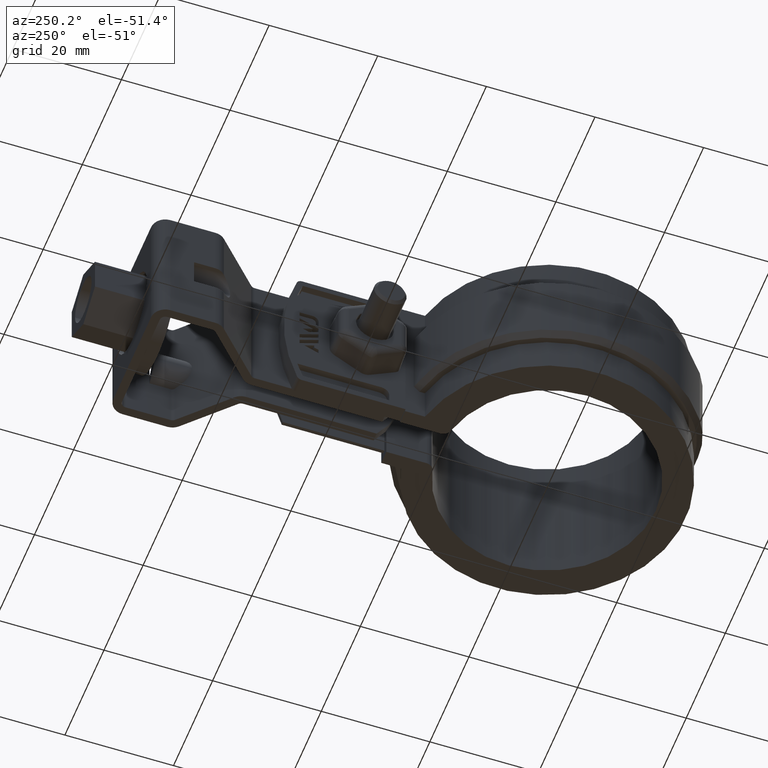
[diagram: clean part render]
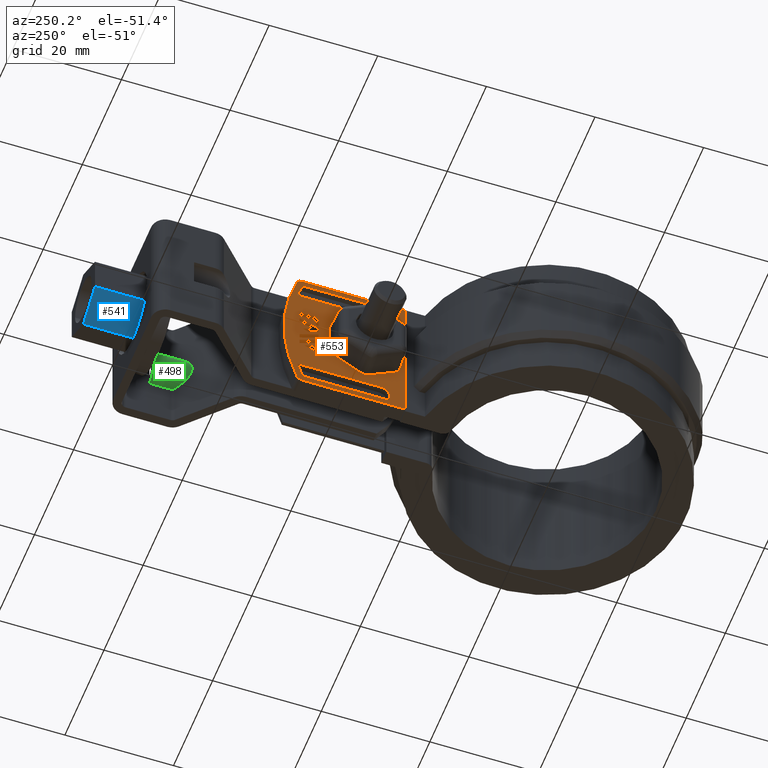
[diagram: same view with three faces highlighted in distinct colors, each labeled with its STEP entity id]
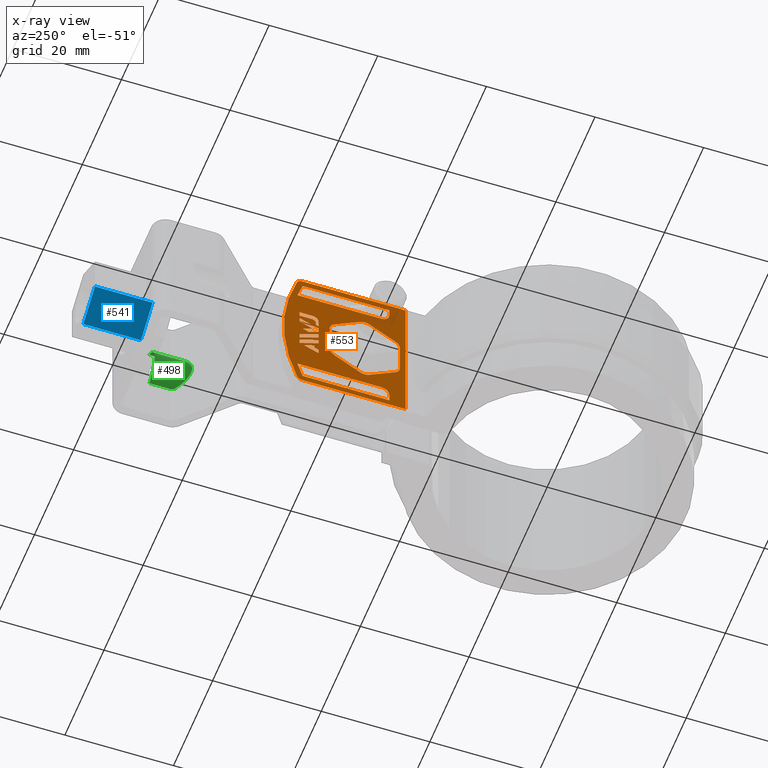
[diagram: x-ray of the same camera — body ghosted, the three highlighted faces saturated]
A machine part, auxiliary view with three faces highlighted in distinct colors.
The next image is the same camera in x-ray (body ghosted, the three faces saturated) — at least one of them is partly hidden behind the body in this view.
Their STEP definitions:

[orange] entity #553 — the highlighted planar face has unit normal (-1, 0, -0).
#553 = ADVANCED_FACE( '', ( #1112, #1113, #1114, #1115, #1116, #1117, #1118, #1119, #1120 ), #1121, .T. );
#1112 = FACE_BOUND( '', #2221, .T. );
#1113 = FACE_BOUND( '', #2222, .T. );
#1114 = FACE_BOUND( '', #2223, .T. );
#1115 = FACE_OUTER_BOUND( '', #2224, .T. );
#1116 = FACE_BOUND( '', #2225, .T. );
#1117 = FACE_BOUND( '', #2226, .T. );
#1118 = FACE_BOUND( '', #2227, .T. );
#1119 = FACE_BOUND( '', #2228, .T. );
#1120 = FACE_BOUND( '', #2229, .T. );
#1121 = PLANE( '', #2230 );
#2221 = EDGE_LOOP( '', ( #5444, #5445, #5446, #5447, #5448 ) );
#2222 = EDGE_LOOP( '', ( #5449, #5450, #5451, #5452 ) );
#2223 = EDGE_LOOP( '', ( #5453, #5454, #5455, #5456, #5457, #5458, #5459, #5460, #5461, #5462, #5463, #5464 ) );
#2224 = EDGE_LOOP( '', ( #5465, #5466, #5467, #5468, #5469, #5470 ) );
#2225 = EDGE_LOOP( '', ( #5471, #5472, #5473, #5474, #5475 ) );
#2226 = EDGE_LOOP( '', ( #5476, #5477, #5478, #5479, #5480 ) );
#2227 = EDGE_LOOP( '', ( #5481, #5482, #5483, #5484, #5485, #5486, #5487, #5488, #5489, #5490, #5491, #5492, #5493, #5494, #5495, #5496, #5497, #5498, #5499, #5500, #5501, #5502, #5503, #5504, #5505, #5506, #5507, #5508, #5509, #5510, #5511, #5512, #5513, #5514, #5515, #5516, #5517, #5518, #5519, #5520 ) );
#2228 = EDGE_LOOP( '', ( #5521, #5522, #5523, #5524, #5525, #5526, #5527 ) );
#2229 = EDGE_LOOP( '', ( #5528, #5529, #5530, #5531 ) );
#2230 = AXIS2_PLACEMENT_3D( '', #5532, #5533, #5534 );
#5444 = ORIENTED_EDGE( '', *, *, #7228, .T. );
#5445 = ORIENTED_EDGE( '', *, *, #7229, .T. );
#5446 = ORIENTED_EDGE( '', *, *, #7230, .T. );
#5447 = ORIENTED_EDGE( '', *, *, #7231, .T. );
#5448 = ORIENTED_EDGE( '', *, *, #7232, .T. );
#5449 = ORIENTED_EDGE( '', *, *, #7233, .T. );
#5450 = ORIENTED_EDGE( '', *, *, #7234, .T. );
#5451 = ORIENTED_EDGE( '', *, *, #7235, .T. );
#5452 = ORIENTED_EDGE( '', *, *, #7236, .T. );
#5453 = ORIENTED_EDGE( '', *, *, #7237, .F. );
#5454 = ORIENTED_EDGE( '', *, *, #7238, .F. );
#5455 = ORIENTED_EDGE( '', *, *, #7239, .F. );
#5456 = ORIENTED_EDGE( '', *, *, #7240, .F. );
#5457 = ORIENTED_EDGE( '', *, *, #7241, .F. );
#5458 = ORIENTED_EDGE( '', *, *, #7242, .F. );
#5459 = ORIENTED_EDGE( '', *, *, #7243, .F. );
#5460 = ORIENTED_EDGE( '', *, *, #7244, .F. );
#5461 = ORIENTED_EDGE( '', *, *, #7245, .F. );
#5462 = ORIENTED_EDGE( '', *, *, #7246, .F. );
#5463 = ORIENTED_EDGE( '', *, *, #7247, .F. );
#5464 = ORIENTED_EDGE( '', *, *, #7248, .F. );
#5465 = ORIENTED_EDGE( '', *, *, #7249, .T. );
#5466 = ORIENTED_EDGE( '', *, *, #7250, .T. );
#5467 = ORIENTED_EDGE( '', *, *, #7251, .T. );
#5468 = ORIENTED_EDGE( '', *, *, #7252, .T. );
#5469 = ORIENTED_EDGE( '', *, *, #7253, .T. );
#5470 = ORIENTED_EDGE( '', *, *, #7254, .T. );
#5471 = ORIENTED_EDGE( '', *, *, #7255, .F. );
#5472 = ORIENTED_EDGE( '', *, *, #7256, .T. );
#5473 = ORIENTED_EDGE( '', *, *, #7257, .T. );
#5474 = ORIENTED_EDGE( '', *, *, #7258, .T. );
#5475 = ORIENTED_EDGE( '', *, *, #7259, .F. );
#5476 = ORIENTED_EDGE( '', *, *, #7260, .F. );
#5477 = ORIENTED_EDGE( '', *, *, #7261, .F. );
#5478 = ORIENTED_EDGE( '', *, *, #7262, .T. );
#5479 = ORIENTED_EDGE( '', *, *, #7263, .T. );
#5480 = ORIENTED_EDGE( '', *, *, #7264, .T. );
#5481 = ORIENTED_EDGE( '', *, *, #7265, .T. );
#5482 = ORIENTED_EDGE( '', *, *, #7266, .T. );
#5483 = ORIENTED_EDGE( '', *, *, #7267, .T. );
#5484 = ORIENTED_EDGE( '', *, *, #7268, .T. );
#5485 = ORIENTED_EDGE( '', *, *, #7269, .T. );
#5486 = ORIENTED_EDGE( '', *, *, #7270, .T. );
#5487 = ORIENTED_EDGE( '', *, *, #7271, .T. );
#5488 = ORIENTED_EDGE( '', *, *, #7272, .T. );
#5489 = ORIENTED_EDGE( '', *, *, #7273, .T. );
#5490 = ORIENTED_EDGE( '', *, *, #7274, .T. );
#5491 = ORIENTED_EDGE( '', *, *, #7275, .T. );
#5492 = ORIENTED_EDGE( '', *, *, #7276, .T. );
#5493 = ORIENTED_EDGE( '', *, *, #7277, .T. );
#5494 = ORIENTED_EDGE( '', *, *, #7278, .T. );
#5495 = ORIENTED_EDGE( '', *, *, #7279, .T. );
#5496 = ORIENTED_EDGE( '', *, *, #7280, .T. );
#5497 = ORIENTED_EDGE( '', *, *, #7281, .T. );
#5498 = ORIENTED_EDGE( '', *, *, #7282, .T. );
#5499 = ORIENTED_EDGE( '', *, *, #7283, .T. );
#5500 = ORIENTED_EDGE( '', *, *, #7284, .T. );
#5501 = ORIENTED_EDGE( '', *, *, #7285, .T. );
#5502 = ORIENTED_EDGE( '', *, *, #7286, .T. );
#5503 = ORIENTED_EDGE( '', *, *, #7287, .T. );
#5504 = ORIENTED_EDGE( '', *, *, #7288, .T. );
#5505 = ORIENTED_EDGE( '', *, *, #7289, .T. );
#5506 = ORIENTED_EDGE( '', *, *, #7290, .T. );
#5507 = ORIENTED_EDGE( '', *, *, #7291, .T. );
#5508 = ORIENTED_EDGE( '', *, *, #7292, .T. );
#5509 = ORIENTED_EDGE( '', *, *, #7293, .T. );
#5510 = ORIENTED_EDGE( '', *, *, #7294, .T. );
#5511 = ORIENTED_EDGE( '', *, *, #7295, .T. );
#5512 = ORIENTED_EDGE( '', *, *, #7296, .T. );
#5513 = ORIENTED_EDGE( '', *, *, #7297, .T. );
#5514 = ORIENTED_EDGE( '', *, *, #7298, .T. );
#5515 = ORIENTED_EDGE( '', *, *, #7299, .T. );
#5516 = ORIENTED_EDGE( '', *, *, #7300, .T. );
#5517 = ORIENTED_EDGE( '', *, *, #7301, .T. );
#5518 = ORIENTED_EDGE( '', *, *, #7302, .T. );
#5519 = ORIENTED_EDGE( '', *, *, #7303, .T. );
#5520 = ORIENTED_EDGE( '', *, *, #7304, .T. );
#5521 = ORIENTED_EDGE( '', *, *, #7305, .T. );
#5522 = ORIENTED_EDGE( '', *, *, #7306, .T. );
#5523 = ORIENTED_EDGE( '', *, *, #7307, .T. );
#5524 = ORIENTED_EDGE( '', *, *, #7308, .T. );
#5525 = ORIENTED_EDGE( '', *, *, #7309, .T. );
#5526 = ORIENTED_EDGE( '', *, *, #7310, .T. );
#5527 = ORIENTED_EDGE( '', *, *, #7311, .T. );
#5528 = ORIENTED_EDGE( '', *, *, #7312, .T. );
#5529 = ORIENTED_EDGE( '', *, *, #7313, .T. );
#5530 = ORIENTED_EDGE( '', *, *, #7224, .T. );
#5531 = ORIENTED_EDGE( '', *, *, #7227, .T. );
#5532 = CARTESIAN_POINT( '', ( -6.30000000000000, 14.3515100161062, -12.4999999999999 ) );
#5533 = DIRECTION( '', ( -1.00000000000000, 6.90531165066416E-016, -3.52863551097418E-016 ) );
#5534 = DIRECTION( '', ( 6.90531165066416E-016, 1.00000000000000, 1.97370347598284E-018 ) );
#7224 = EDGE_CURVE( '', #8619, #8617, #8620, .T. );
#7227 = EDGE_CURVE( '', #8617, #8622, #8624, .T. );
#7228 = EDGE_CURVE( '', #8625, #8626, #8627, .T. );
#7229 = EDGE_CURVE( '', #8626, #8628, #8629, .T. );
#7230 = EDGE_CURVE( '', #8628, #8630, #8631, .T. );
#7231 = EDGE_CURVE( '', #8630, #8632, #8633, .T. );
#7232 = EDGE_CURVE( '', #8632, #8625, #8634, .T. );
#7233 = EDGE_CURVE( '', #8635, #8636, #8637, .T. );
#7234 = EDGE_CURVE( '', #8636, #8638, #8639, .T. );
#7235 = EDGE_CURVE( '', #8638, #8640, #8641, .T. );
#7236 = EDGE_CURVE( '', #8640, #8635, #8642, .T. );
#7237 = EDGE_CURVE( '', #8643, #8644, #8645, .F. );
#7238 = EDGE_CURVE( '', #8646, #8643, #8647, .T. );
#7239 = EDGE_CURVE( '', #8648, #8646, #8649, .F. );
#7240 = EDGE_CURVE( '', #8650, #8648, #8651, .T. );
#7241 = EDGE_CURVE( '', #8652, #8650, #8653, .F. );
#7242 = EDGE_CURVE( '', #8654, #8652, #8655, .T. );
#7243 = EDGE_CURVE( '', #8656, #8654, #8657, .F. );
#7244 = EDGE_CURVE( '', #8658, #8656, #8659, .T. );
#7245 = EDGE_CURVE( '', #8660, #8658, #8661, .F. );
#7246 = EDGE_CURVE( '', #8662, #8660, #8663, .T. );
#7247 = EDGE_CURVE( '', #8664, #8662, #8665, .F. );
#7248 = EDGE_CURVE( '', #8644, #8664, #8666, .T. );
#7249 = EDGE_CURVE( '', #8667, #8668, #8669, .T. );
#7250 = EDGE_CURVE( '', #8668, #8670, #8671, .T. );
#7251 = EDGE_CURVE( '', #8670, #8672, #8673, .T. );
#7252 = EDGE_CURVE( '', #8672, #8674, #8675, .T. );
#7253 = EDGE_CURVE( '', #8674, #8676, #8677, .T. );
#7254 = EDGE_CURVE( '', #8676, #8667, #8678, .T. );
#7255 = EDGE_CURVE( '', #8679, #8680, #8681, .T. );
#7256 = EDGE_CURVE( '', #8679, #8682, #8683, .T. );
#7257 = EDGE_CURVE( '', #8682, #8684, #8685, .T. );
#7258 = EDGE_CURVE( '', #8684, #8686, #8687, .T. );
#7259 = EDGE_CURVE( '', #8680, #8686, #8688, .T. );
#7260 = EDGE_CURVE( '', #8689, #8690, #8691, .T. );
#7261 = EDGE_CURVE( '', #8692, #8689, #8693, .T. );
#7262 = EDGE_CURVE( '', #8692, #8694, #8695, .T. );
#7263 = EDGE_CURVE( '', #8694, #8696, #8697, .T. );
#7264 = EDGE_CURVE( '', #8696, #8690, #8698, .T. );
#7265 = EDGE_CURVE( '', #8699, #8700, #8701, .T. );
#7266 = EDGE_CURVE( '', #8700, #8702, #8703, .T. );
#7267 = EDGE_CURVE( '', #8702, #8704, #8705, .T. );
#7268 = EDGE_CURVE( '', #8704, #8706, #8707, .T. );
#7269 = EDGE_CURVE( '', #8706, #8708, #8709, .T. );
#7270 = EDGE_CURVE( '', #8708, #8710, #8711, .T. );
#7271 = EDGE_CURVE( '', #8710, #8712, #8713, .T. );
#7272 = EDGE_CURVE( '', #8712, #8714, #8715, .T. );
#7273 = EDGE_CURVE( '', #8714, #8716, #8717, .T. );
#7274 = EDGE_CURVE( '', #8716, #8718, #8719, .T. );
#7275 = EDGE_CURVE( '', #8718, #8720, #8721, .T. );
#7276 = EDGE_CURVE( '', #8720, #8722, #8723, .T. );
#7277 = EDGE_CURVE( '', #8722, #8724, #8725, .T. );
#7278 = EDGE_CURVE( '', #8724, #8726, #8727, .T. );
#7279 = EDGE_CURVE( '', #8726, #8728, #8729, .T. );
#7280 = EDGE_CURVE( '', #8728, #8730, #8731, .T. );
#7281 = EDGE_CURVE( '', #8730, #8732, #8733, .T. );
#7282 = EDGE_CURVE( '', #8732, #8734, #8735, .T. );
#7283 = EDGE_CURVE( '', #8734, #8736, #8737, .T. );
#7284 = EDGE_CURVE( '', #8736, #8738, #8739, .T. );
#7285 = EDGE_CURVE( '', #8738, #8740, #8741, .T. );
#7286 = EDGE_CURVE( '', #8740, #8742, #8743, .T. );
#7287 = EDGE_CURVE( '', #8742, #8744, #8745, .T. );
#7288 = EDGE_CURVE( '', #8744, #8746, #8747, .T. );
#7289 = EDGE_CURVE( '', #8746, #8748, #8749, .T. );
#7290 = EDGE_CURVE( '', #8748, #8750, #8751, .T. );
#7291 = EDGE_CURVE( '', #8750, #8752, #8753, .T. );
#7292 = EDGE_CURVE( '', #8752, #8754, #8755, .T. );
#7293 = EDGE_CURVE( '', #8754, #8756, #8757, .T. );
#7294 = EDGE_CURVE( '', #8756, #8758, #8759, .T. );
#7295 = EDGE_CURVE( '', #8758, #8760, #8761, .T. );
#7296 = EDGE_CURVE( '', #8760, #8762, #8763, .T. );
#7297 = EDGE_CURVE( '', #8762, #8764, #8765, .T. );
#7298 = EDGE_CURVE( '', #8764, #8766, #8767, .T. );
#7299 = EDGE_CURVE( '', #8766, #8768, #8769, .T. );
#7300 = EDGE_CURVE( '', #8768, #8770, #8771, .T. );
#7301 = EDGE_CURVE( '', #8770, #8772, #8773, .T. );
#7302 = EDGE_CURVE( '', #8772, #8774, #8775, .T. );
#7303 = EDGE_CURVE( '', #8774, #8776, #8777, .T. );
#7304 = EDGE_CURVE( '', #8776, #8699, #8778, .F. );
#7305 = EDGE_CURVE( '', #8779, #8780, #8781, .T. );
#7306 = EDGE_CURVE( '', #8780, #8782, #8783, .T. );
#7307 = EDGE_CURVE( '', #8782, #8784, #8785, .T. );
#7308 = EDGE_CURVE( '', #8784, #8786, #8787, .T. );
#7309 = EDGE_CURVE( '', #8786, #8788, #8789, .T. );
#7310 = EDGE_CURVE( '', #8788, #8790, #8791, .T. );
#7311 = EDGE_CURVE( '', #8790, #8779, #8792, .T. );
#7312 = EDGE_CURVE( '', #8622, #8793, #8794, .T. );
#7313 = EDGE_CURVE( '', #8793, #8619, #8795, .T. );
#8617 = VERTEX_POINT( '', #12225 );
#8619 = VERTEX_POINT( '', #12228 );
#8620 = LINE( '', #12229, #12230 );
#8622 = VERTEX_POINT( '', #12233 );
#8624 = LINE( '', #12236, #12237 );
#8625 = VERTEX_POINT( '', #12238 );
#8626 = VERTEX_POINT( '', #12239 );
#8627 = LINE( '', #12240, #12241 );
#8628 = VERTEX_POINT( '', #12242 );
#8629 = LINE( '', #12243, #12244 );
#8630 = VERTEX_POINT( '', #12245 );
#8631 = LINE( '', #12246, #12247 );
#8632 = VERTEX_POINT( '', #12248 );
#8633 = LINE( '', #12249, #12250 );
#8634 = LINE( '', #12251, #12252 );
#8635 = VERTEX_POINT( '', #12253 );
#8636 = VERTEX_POINT( '', #12254 );
#8637 = LINE( '', #12255, #12256 );
#8638 = VERTEX_POINT( '', #12257 );
#8639 = LINE( '', #12258, #12259 );
#8640 = VERTEX_POINT( '', #12260 );
#8641 = LINE( '', #12261, #12262 );
#8642 = LINE( '', #12263, #12264 );
#8643 = VERTEX_POINT( '', #12265 );
#8644 = VERTEX_POINT( '', #12266 );
#8645 = LINE( '', #12267, #12268 );
#8646 = VERTEX_POINT( '', #12269 );
#8647 = CIRCLE( '', #12270, 1.77252045227160 );
#8648 = VERTEX_POINT( '', #12271 );
#8649 = LINE( '', #12272, #12273 );
#8650 = VERTEX_POINT( '', #12274 );
#8651 = CIRCLE( '', #12275, 1.77252045227160 );
#8652 = VERTEX_POINT( '', #12276 );
#8653 = LINE( '', #12277, #12278 );
#8654 = VERTEX_POINT( '', #12279 );
#8655 = CIRCLE( '', #12280, 1.77252045227161 );
#8656 = VERTEX_POINT( '', #12281 );
#8657 = LINE( '', #12282, #12283 );
#8658 = VERTEX_POINT( '', #12284 );
#8659 = CIRCLE( '', #12285, 1.77252045227161 );
#8660 = VERTEX_POINT( '', #12286 );
#8661 = LINE( '', #12287, #12288 );
#8662 = VERTEX_POINT( '', #12289 );
#8663 = CIRCLE( '', #12290, 1.77252045227160 );
#8664 = VERTEX_POINT( '', #12291 );
#8665 = LINE( '', #12292, #12293 );
#8666 = CIRCLE( '', #12294, 1.77252045227161 );
#8667 = VERTEX_POINT( '', #12295 );
#8668 = VERTEX_POINT( '', #12296 );
#8669 = CIRCLE( '', #12297, 0.999999999999883 );
#8670 = VERTEX_POINT( '', #12298 );
#8671 = LINE( '', #12299, #12300 );
#8672 = VERTEX_POINT( '', #12301 );
#8673 = LINE( '', #12302, #12303 );
#8674 = VERTEX_POINT( '', #12304 );
#8675 = LINE( '', #12305, #12306 );
#8676 = VERTEX_POINT( '', #12307 );
#8677 = CIRCLE( '', #12308, 0.999999999999883 );
#8678 = CIRCLE( '', #12309, 36.3999999999959 );
#8679 = VERTEX_POINT( '', #12310 );
#8680 = VERTEX_POINT( '', #12311 );
#8681 = CIRCLE( '', #12312, 35.1999999999961 );
#8682 = VERTEX_POINT( '', #12313 );
#8683 = LINE( '', #12314, #12315 );
#8684 = VERTEX_POINT( '', #12316 );
#8685 = CIRCLE( '', #12317, 1.49999999999983 );
#8686 = VERTEX_POINT( '', #12318 );
#8687 = LINE( '', #12319, #12320 );
#8688 = LINE( '', #12321, #12322 );
#8689 = VERTEX_POINT( '', #12323 );
#8690 = VERTEX_POINT( '', #12324 );
#8691 = CIRCLE( '', #12325, 35.1999999999961 );
#8692 = VERTEX_POINT( '', #12326 );
#8693 = LINE( '', #12327, #12328 );
#8694 = VERTEX_POINT( '', #12329 );
#8695 = LINE( '', #12330, #12331 );
#8696 = VERTEX_POINT( '', #12332 );
#8697 = CIRCLE( '', #12333, 1.49999999999983 );
#8698 = LINE( '', #12334, #12335 );
#8699 = VERTEX_POINT( '', #12336 );
#8700 = VERTEX_POINT( '', #12337 );
#8701 = LINE( '', #12338, #12339 );
#8702 = VERTEX_POINT( '', #12340 );
#8703 = LINE( '', #12341, #12342 );
#8704 = VERTEX_POINT( '', #12343 );
#8705 = LINE( '', #12344, #12345 );
#8706 = VERTEX_POINT( '', #12346 );
#8707 = LINE( '', #12347, #12348 );
#8708 = VERTEX_POINT( '', #12349 );
#8709 = LINE( '', #12350, #12351 );
#8710 = VERTEX_POINT( '', #12352 );
#8711 = LINE( '', #12353, #12354 );
#8712 = VERTEX_POINT( '', #12355 );
#8713 = LINE( '', #12356, #12357 );
#8714 = VERTEX_POINT( '', #12358 );
#8715 = LINE( '', #12359, #12360 );
#8716 = VERTEX_POINT( '', #12361 );
#8717 = LINE( '', #12362, #12363 );
#8718 = VERTEX_POINT( '', #12364 );
#8719 = LINE( '', #12365, #12366 );
#8720 = VERTEX_POINT( '', #12367 );
#8721 = LINE( '', #12368, #12369 );
#8722 = VERTEX_POINT( '', #12370 );
#8723 = LINE( '', #12371, #12372 );
#8724 = VERTEX_POINT( '', #12373 );
#8725 = LINE( '', #12374, #12375 );
#8726 = VERTEX_POINT( '', #12376 );
#8727 = LINE( '', #12377, #12378 );
#8728 = VERTEX_POINT( '', #12379 );
#8729 = LINE( '', #12380, #12381 );
#8730 = VERTEX_POINT( '', #12382 );
#8731 = LINE( '', #12383, #12384 );
#8732 = VERTEX_POINT( '', #12385 );
#8733 = LINE( '', #12386, #12387 );
#8734 = VERTEX_POINT( '', #12388 );
#8735 = LINE( '', #12389, #12390 );
#8736 = VERTEX_POINT( '', #12391 );
#8737 = LINE( '', #12392, #12393 );
#8738 = VERTEX_POINT( '', #12394 );
#8739 = LINE( '', #12395, #12396 );
#8740 = VERTEX_POINT( '', #12397 );
#8741 = LINE( '', #12398, #12399 );
#8742 = VERTEX_POINT( '', #12400 );
#8743 = LINE( '', #12401, #12402 );
#8744 = VERTEX_POINT( '', #12403 );
#8745 = LINE( '', #12404, #12405 );
#8746 = VERTEX_POINT( '', #12406 );
#8747 = LINE( '', #12407, #12408 );
#8748 = VERTEX_POINT( '', #12409 );
#8749 = LINE( '', #12410, #12411 );
#8750 = VERTEX_POINT( '', #12412 );
#8751 = LINE( '', #12413, #12414 );
#8752 = VERTEX_POINT( '', #12415 );
#8753 = LINE( '', #12416, #12417 );
#8754 = VERTEX_POINT( '', #12418 );
#8755 = LINE( '', #12419, #12420 );
#8756 = VERTEX_POINT( '', #12421 );
#8757 = LINE( '', #12422, #12423 );
#8758 = VERTEX_POINT( '', #12424 );
#8759 = LINE( '', #12425, #12426 );
#8760 = VERTEX_POINT( '', #12427 );
#8761 = LINE( '', #12428, #12429 );
#8762 = VERTEX_POINT( '', #12430 );
#8763 = LINE( '', #12431, #12432 );
#8764 = VERTEX_POINT( '', #12433 );
#8765 = LINE( '', #12434, #12435 );
#8766 = VERTEX_POINT( '', #12436 );
#8767 = LINE( '', #12437, #12438 );
#8768 = VERTEX_POINT( '', #12439 );
#8769 = LINE( '', #12440, #12441 );
#8770 = VERTEX_POINT( '', #12442 );
#8771 = LINE( '', #12443, #12444 );
#8772 = VERTEX_POINT( '', #12445 );
#8773 = LINE( '', #12446, #12447 );
#8774 = VERTEX_POINT( '', #12448 );
#8775 = LINE( '', #12449, #12450 );
#8776 = VERTEX_POINT( '', #12451 );
#8777 = LINE( '', #12452, #12453 );
#8778 = CIRCLE( '', #12454, 1.16712912069180 );
#8779 = VERTEX_POINT( '', #12455 );
#8780 = VERTEX_POINT( '', #12456 );
#8781 = LINE( '', #12457, #12458 );
#8782 = VERTEX_POINT( '', #12459 );
#8783 = LINE( '', #12460, #12461 );
#8784 = VERTEX_POINT( '', #12462 );
#8785 = LINE( '', #12463, #12464 );
#8786 = VERTEX_POINT( '', #12465 );
#8787 = LINE( '', #12466, #12467 );
#8788 = VERTEX_POINT( '', #12468 );
#8789 = LINE( '', #12469, #12470 );
#8790 = VERTEX_POINT( '', #12471 );
#8791 = LINE( '', #12472, #12473 );
#8792 = LINE( '', #12474, #12475 );
#8793 = VERTEX_POINT( '', #12476 );
#8794 = LINE( '', #12477, #12478 );
#8795 = LINE( '', #12479, #12480 );
#12225 = CARTESIAN_POINT( '', ( -6.29999999999998, 47.8536409528769, -16.0992186099995 ) );
#12228 = CARTESIAN_POINT( '', ( -6.29999999999998, 44.3552021288773, -14.6858050039997 ) );
#12229 = CARTESIAN_POINT( '', ( -6.30000000000000, 17.8025126735195, -3.95818207269887 ) );
#12230 = VECTOR( '', #13819, 999.999999999962 );
#12233 = CARTESIAN_POINT( '', ( -6.29999999999998, 47.8536409528769, -15.1954619119996 ) );
#12236 = CARTESIAN_POINT( '', ( -6.29999999999998, 47.8536409528769, -12.4999999999999 ) );
#12237 = VECTOR( '', #13822, 999.999999999966 );
#12238 = CARTESIAN_POINT( '', ( -6.29999999999998, 45.1632080328772, -15.6427309999996 ) );
#12239 = CARTESIAN_POINT( '', ( -6.29999999999998, 45.1632080328772, -16.2049013519995 ) );
#12240 = CARTESIAN_POINT( '', ( -6.29999999999998, 45.1632080328772, -12.4999999999999 ) );
#12241 = VECTOR( '', #13823, 999.999999999966 );
#12242 = CARTESIAN_POINT( '', ( -6.29999999999998, 44.3552021288773, -16.5315944439995 ) );
#12243 = CARTESIAN_POINT( '', ( -6.29999999999999, 19.9682219007344, -26.3917426630090 ) );
#12244 = VECTOR( '', #13824, 999.999999999962 );
#12245 = CARTESIAN_POINT( '', ( -6.29999999999998, 44.3552021288773, -17.4353519199994 ) );
#12246 = CARTESIAN_POINT( '', ( -6.29999999999998, 44.3552021288773, -12.4999999999999 ) );
#12247 = VECTOR( '', #13825, 999.999999999966 );
#12248 = CARTESIAN_POINT( '', ( -6.29999999999998, 46.9782392428770, -16.3757128079995 ) );
#12249 = CARTESIAN_POINT( '', ( -6.29999999999999, 20.2750302868753, -27.1631181690081 ) );
#12250 = VECTOR( '', #13826, 999.999999999962 );
#12251 = CARTESIAN_POINT( '', ( -6.30000000000000, 17.5806886735804, -4.50381239750786 ) );
#12252 = VECTOR( '', #13827, 999.999999999962 );
#12253 = CARTESIAN_POINT( '', ( -6.29999999999998, 47.8536409528769, -14.5449628859997 ) );
#12254 = CARTESIAN_POINT( '', ( -6.29999999999998, 47.8536409528769, -13.6409432239998 ) );
#12255 = CARTESIAN_POINT( '', ( -6.29999999999998, 47.8536409528769, -12.4999999999999 ) );
#12256 = VECTOR( '', #13828, 999.999999999966 );
#12257 = CARTESIAN_POINT( '', ( -6.29999999999998, 44.3552021288773, -12.2273304500000 ) );
#12258 = CARTESIAN_POINT( '', ( -6.30000000000000, 18.6574216953137, -1.84363860576233 ) );
#12259 = VECTOR( '', #13829, 999.999999999962 );
#12260 = CARTESIAN_POINT( '', ( -6.29999999999998, 44.3552021288773, -13.1313508899999 ) );
#12261 = CARTESIAN_POINT( '', ( -6.29999999999998, 44.3552021288773, -12.4999999999999 ) );
#12262 = VECTOR( '', #13830, 999.999999999966 );
#12263 = CARTESIAN_POINT( '', ( -6.30000000000000, 18.3434008681391, -2.62077856056715 ) );
#12264 = VECTOR( '', #13831, 999.999999999962 );
#12265 = CARTESIAN_POINT( '', ( -6.29999999999999, 42.3240304683746, -9.78645373480899 ) );
#12266 = CARTESIAN_POINT( '', ( -6.29999999999998, 42.3240304683746, -15.2135462651909 ) );
#12267 = CARTESIAN_POINT( '', ( -6.29999999999998, 42.3240304683746, -15.2135462651909 ) );
#12268 = VECTOR( '', #13832, 999.999999999966 );
#12269 = CARTESIAN_POINT( '', ( -6.29999999999999, 41.4377702422388, -8.25140599441429 ) );
#12270 = AXIS2_PLACEMENT_3D( '', #13833, #13834, #13835 );
#12271 = CARTESIAN_POINT( '', ( -6.29999999999999, 36.7377702422394, -5.53785972922336 ) );
#12272 = CARTESIAN_POINT( '', ( -6.29999999999998, 43.7877702422386, -9.60817912700975 ) );
#12273 = VECTOR( '', #13836, 999.999999999962 );
#12274 = CARTESIAN_POINT( '', ( -6.29999999999999, 34.9652497899678, -5.53785972922335 ) );
#12275 = AXIS2_PLACEMENT_3D( '', #13837, #13838, #13839 );
#12276 = CARTESIAN_POINT( '', ( -6.29999999999999, 30.2652497899683, -8.25140599441429 ) );
#12277 = CARTESIAN_POINT( '', ( -6.29999999999999, 34.9652497899678, -5.53785972922335 ) );
#12278 = VECTOR( '', #13840, 999.999999999962 );
#12279 = CARTESIAN_POINT( '', ( -6.29999999999999, 29.3789895638325, -9.78645373480899 ) );
#12280 = AXIS2_PLACEMENT_3D( '', #13841, #13842, #13843 );
#12281 = CARTESIAN_POINT( '', ( -6.29999999999999, 29.3789895638325, -15.2135462651909 ) );
#12282 = CARTESIAN_POINT( '', ( -6.29999999999999, 29.3789895638325, -15.2135462651909 ) );
#12283 = VECTOR( '', #13844, 999.999999999966 );
#12284 = CARTESIAN_POINT( '', ( -6.29999999999999, 30.2652497899683, -16.7485940055856 ) );
#12285 = AXIS2_PLACEMENT_3D( '', #13845, #13846, #13847 );
#12286 = CARTESIAN_POINT( '', ( -6.29999999999999, 34.9652497899678, -19.4621402707765 ) );
#12287 = CARTESIAN_POINT( '', ( -6.29999999999998, 37.3152497899675, -20.8189134033720 ) );
#12288 = VECTOR( '', #13848, 999.999999999962 );
#12289 = CARTESIAN_POINT( '', ( -6.29999999999999, 36.7377702422394, -19.4621402707765 ) );
#12290 = AXIS2_PLACEMENT_3D( '', #13849, #13850, #13851 );
#12291 = CARTESIAN_POINT( '', ( -6.29999999999998, 41.4377702422388, -16.7485940055856 ) );
#12292 = CARTESIAN_POINT( '', ( -6.29999999999998, 41.4377702422388, -16.7485940055856 ) );
#12293 = VECTOR( '', #13852, 999.999999999962 );
#12294 = AXIS2_PLACEMENT_3D( '', #13853, #13854, #13855 );
#12295 = CARTESIAN_POINT( '', ( -6.29999999999998, 48.3283972189027, -25.5587570621454 ) );
#12296 = CARTESIAN_POINT( '', ( -6.29999999999998, 47.3949662517929, -26.1999999999984 ) );
#12297 = AXIS2_PLACEMENT_3D( '', #13856, #13857, #13858 );
#12298 = CARTESIAN_POINT( '', ( -6.29999999999999, 28.3515100161045, -26.1999999999984 ) );
#12299 = CARTESIAN_POINT( '', ( -6.29999999999999, 31.3515100161042, -26.1999999999984 ) );
#12300 = VECTOR( '', #13859, 999.999999999961 );
#12301 = CARTESIAN_POINT( '', ( -6.30000000000000, 28.3515100161045, 1.19999999999850 ) );
#12302 = CARTESIAN_POINT( '', ( -6.29999999999999, 28.3515100161045, -26.1999999999984 ) );
#12303 = VECTOR( '', #13860, 999.999999999966 );
#12304 = CARTESIAN_POINT( '', ( -6.29999999999999, 47.3949662517929, 1.19999999999853 ) );
#12305 = CARTESIAN_POINT( '', ( -6.30000000000000, 28.3515100161045, 1.19999999999851 ) );
#12306 = VECTOR( '', #13861, 999.999999999961 );
#12307 = CARTESIAN_POINT( '', ( -6.29999999999998, 48.3283972189027, 0.558757062145488 ) );
#12308 = AXIS2_PLACEMENT_3D( '', #13862, #13863, #13864 );
#12309 = AXIS2_PLACEMENT_3D( '', #13865, #13866, #13867 );
#12310 = CARTESIAN_POINT( '', ( -6.29999999999998, 48.2453147597423, -21.9999999999989 ) );
#12311 = CARTESIAN_POINT( '', ( -6.29999999999998, 47.2572845853173, -24.9999999999985 ) );
#12312 = AXIS2_PLACEMENT_3D( '', #13868, #13869, #13870 );
#12313 = CARTESIAN_POINT( '', ( -6.29999999999999, 32.8515100161040, -21.9999999999989 ) );
#12314 = CARTESIAN_POINT( '', ( -6.29999999999998, 49.0754210861414, -21.9999999999989 ) );
#12315 = VECTOR( '', #13871, 999.999999999961 );
#12316 = CARTESIAN_POINT( '', ( -6.29999999999999, 31.3515100161042, -23.4999999999987 ) );
#12317 = AXIS2_PLACEMENT_3D( '', #13872, #13873, #13874 );
#12318 = CARTESIAN_POINT( '', ( -6.29999999999999, 31.3515100161042, -24.9999999999985 ) );
#12319 = CARTESIAN_POINT( '', ( -6.29999999999999, 31.3515100161042, -23.4999999999987 ) );
#12320 = VECTOR( '', #13875, 999.999999999966 );
#12321 = CARTESIAN_POINT( '', ( -6.29999999999998, 47.0432520926574, -24.9999999999985 ) );
#12322 = VECTOR( '', #13876, 999.999999999961 );
#12323 = CARTESIAN_POINT( '', ( -6.29999999999998, 47.2572845853174, -1.34152533018390E-012 ) );
#12324 = CARTESIAN_POINT( '', ( -6.29999999999998, 48.2453147597423, -3.00000000000100 ) );
#12325 = AXIS2_PLACEMENT_3D( '', #13877, #13878, #13879 );
#12326 = CARTESIAN_POINT( '', ( -6.29999999999999, 31.3515100161042, -1.33154291615787E-012 ) );
#12327 = CARTESIAN_POINT( '', ( -6.30000000000000, 28.3515100161045, -1.33160059571345E-012 ) );
#12328 = VECTOR( '', #13880, 999.999999999961 );
#12329 = CARTESIAN_POINT( '', ( -6.29999999999999, 31.3515100161042, -1.50000000000119 ) );
#12330 = CARTESIAN_POINT( '', ( -6.30000000000000, 31.3515100161042, 1.19999999999851 ) );
#12331 = VECTOR( '', #13881, 999.999999999966 );
#12332 = CARTESIAN_POINT( '', ( -6.29999999999999, 32.8515100161040, -3.00000000000101 ) );
#12333 = AXIS2_PLACEMENT_3D( '', #13882, #13883, #13884 );
#12334 = CARTESIAN_POINT( '', ( -6.29999999999999, 32.8515100161040, -3.00000000000102 ) );
#12335 = VECTOR( '', #13885, 999.999999999961 );
#12336 = CARTESIAN_POINT( '', ( -6.29999999999998, 44.3552021360159, -8.74297971174900 ) );
#12337 = CARTESIAN_POINT( '', ( -6.29999999999998, 44.3552021288773, -9.97073444800021 ) );
#12338 = CARTESIAN_POINT( '', ( -6.29999999999998, 44.3552021141713, -12.5000001744515 ) );
#12339 = VECTOR( '', #13886, 999.999999999966 );
#12340 = CARTESIAN_POINT( '', ( -6.29999999999998, 44.8639417748773, -9.76519073800024 ) );
#12341 = CARTESIAN_POINT( '', ( -6.30000000000000, 17.6834289456763, -20.7468067581844 ) );
#12342 = VECTOR( '', #13887, 999.999999999962 );
#12343 = CARTESIAN_POINT( '', ( -6.29999999999998, 44.8639417748773, -9.26826424400030 ) );
#12344 = CARTESIAN_POINT( '', ( -6.29999999999998, 44.8639417748773, -12.4999999999999 ) );
#12345 = VECTOR( '', #13888, 999.999999999966 );
#12346 = CARTESIAN_POINT( '', ( -6.29999999999998, 44.8646388628773, -9.23547076600030 ) );
#12347 = CARTESIAN_POINT( '', ( -6.29999999999998, 44.7814950820977, -13.1468474441681 ) );
#12348 = VECTOR( '', #13889, 999.999999999966 );
#12349 = CARTESIAN_POINT( '', ( -6.29999999999998, 44.8667223468773, -9.20269440400031 ) );
#12350 = CARTESIAN_POINT( '', ( -6.29999999999998, 44.5351599266883, -14.4186739410083 ) );
#12351 = VECTOR( '', #13890, 999.999999999966 );
#12352 = CARTESIAN_POINT( '', ( -6.29999999999998, 44.8701813348773, -9.17002851800031 ) );
#12353 = CARTESIAN_POINT( '', ( -6.29999999999998, 44.1830792421978, -15.6588624283450 ) );
#12354 = VECTOR( '', #13891, 999.999999999966 );
#12355 = CARTESIAN_POINT( '', ( -6.29999999999998, 44.8750041568773, -9.13756569000031 ) );
#12356 = CARTESIAN_POINT( '', ( -6.29999999999998, 43.7271056250412, -16.8641690356064 ) );
#12357 = VECTOR( '', #13892, 999.999999999966 );
#12358 = CARTESIAN_POINT( '', ( -6.29999999999998, 44.8811791428773, -9.10540005800031 ) );
#12359 = CARTESIAN_POINT( '', ( -6.29999999999998, 43.1675094667036, -18.0319414579941 ) );
#12360 = VECTOR( '', #13893, 999.999999999966 );
#12361 = CARTESIAN_POINT( '', ( -6.29999999999998, 44.8900810188773, -9.06837192600032 ) );
#12362 = CARTESIAN_POINT( '', ( -6.29999999999998, 42.4415881361497, -19.2530922773807 ) );
#12363 = VECTOR( '', #13894, 999.999999999966 );
#12364 = CARTESIAN_POINT( '', ( -6.29999999999998, 44.9008236428772, -9.03175224400032 ) );
#12365 = CARTESIAN_POINT( '', ( -6.29999999999998, 41.5433160018650, -20.4768947088611 ) );
#12366 = VECTOR( '', #13895, 999.999999999966 );
#12367 = CARTESIAN_POINT( '', ( -6.29999999999998, 44.9133502208773, -8.99566860400032 ) );
#12368 = CARTESIAN_POINT( '', ( -6.29999999999998, 40.5406062432371, -21.5916480886840 ) );
#12369 = VECTOR( '', #13896, 999.999999999966 );
#12370 = CARTESIAN_POINT( '', ( -6.29999999999998, 44.9276031808773, -8.96024704200032 ) );
#12371 = CARTESIAN_POINT( '', ( -6.29999999999998, 39.4410216218313, -22.5955402626220 ) );
#12372 = VECTOR( '', #13897, 999.999999999965 );
#12373 = CARTESIAN_POINT( '', ( -6.29999999999998, 44.9435249508773, -8.92561592800033 ) );
#12374 = CARTESIAN_POINT( '', ( -6.29999999999998, 38.2489197887949, -23.4869137330230 ) );
#12375 = VECTOR( '', #13898, 999.999999999965 );
#12376 = CARTESIAN_POINT( '', ( -6.29999999999998, 44.9610579588772, -8.89190129800034 ) );
#12377 = CARTESIAN_POINT( '', ( -6.29999999999998, 36.9681738285350, -24.2616046077481 ) );
#12378 = VECTOR( '', #13899, 999.999999999965 );
#12379 = CARTESIAN_POINT( '', ( -6.29999999999998, 44.9801438548772, -8.85923152200034 ) );
#12380 = CARTESIAN_POINT( '', ( -6.29999999999998, 35.6008439077840, -24.9139993101245 ) );
#12381 = VECTOR( '', #13900, 999.999999999965 );
#12382 = CARTESIAN_POINT( '', ( -6.29999999999998, 45.0009125648773, -8.82742610400034 ) );
#12383 = CARTESIAN_POINT( '', ( -6.29999999999998, 34.1574867767739, -25.4331608724367 ) );
#12384 = VECTOR( '', #13901, 999.999999999965 );
#12385 = CARTESIAN_POINT( '', ( -6.29999999999998, 45.0232629488772, -8.79662508400035 ) );
#12386 = CARTESIAN_POINT( '', ( -6.29999999999999, 32.6833304715914, -25.8022616328653 ) );
#12387 = VECTOR( '', #13902, 999.999999999964 );
#12388 = CARTESIAN_POINT( '', ( -6.29999999999998, 45.0471063148772, -8.76692337800035 ) );
#12389 = CARTESIAN_POINT( '', ( -6.29999999999999, 31.1955920613079, -26.0217691919010 ) );
#12390 = VECTOR( '', #13903, 999.999999999964 );
#12391 = CARTESIAN_POINT( '', ( -6.29999999999998, 45.0723539708772, -8.73841356800035 ) );
#12392 = CARTESIAN_POINT( '', ( -6.29999999999999, 29.7023270679360, -26.0943434292808 ) );
#12393 = VECTOR( '', #13904, 999.999999999964 );
#12394 = CARTESIAN_POINT( '', ( -6.29999999999998, 45.0989180028772, -8.71119057000036 ) );
#12395 = CARTESIAN_POINT( '', ( -6.29999999999999, 28.2080199184017, -26.0210961134006 ) );
#12396 = VECTOR( '', #13905, 999.999999999964 );
#12397 = CARTESIAN_POINT( '', ( -6.29999999999998, 45.1267081628772, -8.68534852200036 ) );
#12398 = CARTESIAN_POINT( '', ( -6.29999999999999, 26.7204183964632, -25.8013429475661 ) );
#12399 = VECTOR( '', #13906, 999.999999999963 );
#12400 = CARTESIAN_POINT( '', ( -6.29999999999998, 45.1556373148772, -8.66098078400036 ) );
#12401 = CARTESIAN_POINT( '', ( -6.29999999999999, 25.2447790000653, -25.4323876600246 ) );
#12402 = VECTOR( '', #13907, 999.999999999963 );
#12403 = CARTESIAN_POINT( '', ( -6.29999999999998, 45.1852946748772, -8.63839777800036 ) );
#12404 = CARTESIAN_POINT( '', ( -6.29999999999999, 23.8068447147696, -24.9173134913333 ) );
#12405 = VECTOR( '', #13908, 999.999999999963 );
#12406 = CARTESIAN_POINT( '', ( -6.29999999999998, 45.2160949168772, -8.61721361600037 ) );
#12407 = CARTESIAN_POINT( '', ( -6.29999999999999, 22.4504357758096, -24.2752532924790 ) );
#12408 = VECTOR( '', #13909, 999.999999999963 );
#12409 = CARTESIAN_POINT( '', ( -6.29999999999998, 45.2479322328772, -8.59749131600037 ) );
#12410 = CARTESIAN_POINT( '', ( -6.29999999999999, 21.1727416114309, -23.5113782778675 ) );
#12411 = VECTOR( '', #13910, 999.999999999962 );
#12412 = CARTESIAN_POINT( '', ( -6.29999999999998, 45.2806992588772, -8.57929156200037 ) );
#12413 = CARTESIAN_POINT( '', ( -6.29999999999999, 19.9793377928996, -22.6323995415326 ) );
#12414 = VECTOR( '', #13911, 999.999999999962 );
#12415 = CARTESIAN_POINT( '', ( -6.29999999999998, 45.3142901868772, -8.56267426000038 ) );
#12416 = CARTESIAN_POINT( '', ( -6.30000000000000, 18.8742495584980, -21.6424599692155 ) );
#12417 = VECTOR( '', #13912, 999.999999999962 );
#12418 = CARTESIAN_POINT( '', ( -6.29999999999998, 45.3485992088772, -8.54770242800038 ) );
#12419 = CARTESIAN_POINT( '', ( -6.30000000000000, 17.8611990336663, -20.5427029715933 ) );
#12420 = VECTOR( '', #13913, 999.999999999962 );
#12421 = CARTESIAN_POINT( '', ( -6.29999999999998, 45.3835197388772, -8.53443675000038 ) );
#12422 = CARTESIAN_POINT( '', ( -6.30000000000000, 16.9485259617783, -19.3363767944103 ) );
#12423 = VECTOR( '', #13914, 999.999999999962 );
#12424 = CARTESIAN_POINT( '', ( -6.29999999999998, 45.4191046808772, -8.52287956000039 ) );
#12425 = CARTESIAN_POINT( '', ( -6.30000000000000, 16.1474210332243, -18.0296650294179 ) );
#12426 = VECTOR( '', #13915, 999.999999999962 );
#12427 = CARTESIAN_POINT( '', ( -6.29999999999998, 45.4553470328772, -8.51302541200039 ) );
#12428 = CARTESIAN_POINT( '', ( -6.30000000000000, 15.4832285465818, -16.6623224398930 ) );
#12429 = VECTOR( '', #13916, 999.999999999961 );
#12430 = CARTESIAN_POINT( '', ( -6.29999999999998, 45.4921192028772, -8.50490309200038 ) );
#12431 = CARTESIAN_POINT( '', ( -6.30000000000000, 14.9587554323209, -15.2491814748421 ) );
#12432 = VECTOR( '', #13917, 999.999999999961 );
#12433 = CARTESIAN_POINT( '', ( -6.29999999999998, 45.5292928208772, -8.49853905200038 ) );
#12434 = CARTESIAN_POINT( '', ( -6.30000000000000, 14.5737351594590, -13.7980610726830 ) );
#12435 = VECTOR( '', #13918, 999.999999999961 );
#12436 = CARTESIAN_POINT( '', ( -6.29999999999998, 45.5667395168772, -8.49395974400039 ) );
#12437 = CARTESIAN_POINT( '', ( -6.30000000000000, 14.3287656796187, -12.3140111444414 ) );
#12438 = VECTOR( '', #13919, 999.999999999961 );
#12439 = CARTESIAN_POINT( '', ( -6.29999999999998, 45.6043316988772, -8.49119239800038 ) );
#12440 = CARTESIAN_POINT( '', ( -6.30000000000000, 14.2264436580516, -10.8010735578190 ) );
#12441 = VECTOR( '', #13920, 999.999999999961 );
#12442 = CARTESIAN_POINT( '', ( -6.29999999999998, 45.6419417748772, -8.49026424400039 ) );
#12443 = CARTESIAN_POINT( '', ( -6.30000000000000, 14.2716615523630, -9.26443048257857 ) );
#12444 = VECTOR( '', #13921, 999.999999999961 );
#12445 = CARTESIAN_POINT( '', ( -6.29999999999998, 47.8536409528769, -8.49026424400039 ) );
#12446 = CARTESIAN_POINT( '', ( -6.30000000000000, 14.3515100161062, -8.49026424400038 ) );
#12447 = VECTOR( '', #13922, 999.999999999961 );
#12448 = CARTESIAN_POINT( '', ( -6.29999999999998, 47.8536409528769, -7.57597965000049 ) );
#12449 = CARTESIAN_POINT( '', ( -6.29999999999998, 47.8536409528769, -12.4999999999999 ) );
#12450 = VECTOR( '', #13923, 999.999999999966 );
#12451 = CARTESIAN_POINT( '', ( -6.29999999999998, 45.5222021288772, -7.57597965000049 ) );
#12452 = CARTESIAN_POINT( '', ( -6.30000000000000, 14.3515100161062, -7.57597965000049 ) );
#12453 = VECTOR( '', #13924, 999.999999999961 );
#12454 = AXIS2_PLACEMENT_3D( '', #13925, #13926, #13927 );
#12455 = CARTESIAN_POINT( '', ( -6.29999999999998, 45.4103233948772, -11.0991324220001 ) );
#12456 = CARTESIAN_POINT( '', ( -6.29999999999998, 47.8536409528769, -10.1118519780002 ) );
#12457 = CARTESIAN_POINT( '', ( -6.30000000000000, 18.2242741993643, -22.0843007774072 ) );
#12458 = VECTOR( '', #13928, 999.999999999962 );
#12459 = CARTESIAN_POINT( '', ( -6.29999999999998, 47.8536409528769, -9.20781986800031 ) );
#12460 = CARTESIAN_POINT( '', ( -6.29999999999998, 47.8536409528769, -12.4999999999999 ) );
#12461 = VECTOR( '', #13929, 999.999999999966 );
#12462 = CARTESIAN_POINT( '', ( -6.29999999999998, 44.3552021288773, -10.6212101340002 ) );
#12463 = CARTESIAN_POINT( '', ( -6.30000000000000, 17.9090336335302, -21.3056208110981 ) );
#12464 = VECTOR( '', #13930, 999.999999999962 );
#12465 = CARTESIAN_POINT( '', ( -6.29999999999998, 44.3552021288773, -11.5768555420000 ) );
#12466 = CARTESIAN_POINT( '', ( -6.29999999999998, 44.3552021288773, -12.4999999999999 ) );
#12467 = VECTOR( '', #13931, 999.999999999966 );
#12468 = CARTESIAN_POINT( '', ( -6.29999999999998, 46.1375588948771, -12.2970999340000 ) );
#12469 = CARTESIAN_POINT( '', ( -6.30000000000000, 18.8838681468113, -1.28397489806835 ) );
#12470 = VECTOR( '', #13932, 999.999999999962 );
#12471 = CARTESIAN_POINT( '', ( -6.29999999999998, 47.2565337328770, -11.8450842680000 ) );
#12472 = CARTESIAN_POINT( '', ( -6.30000000000000, 18.7402364251485, -23.3643898695858 ) );
#12473 = VECTOR( '', #13933, 999.999999999962 );
#12474 = CARTESIAN_POINT( '', ( -6.30000000000000, 19.1969208670212, -0.507741179560163 ) );
#12475 = VECTOR( '', #13934, 999.999999999962 );
#12476 = CARTESIAN_POINT( '', ( -6.29999999999998, 44.3552021288773, -13.7818491379998 ) );
#12477 = CARTESIAN_POINT( '', ( -6.30000000000000, 18.1174502928761, -3.17997126551329 ) );
#12478 = VECTOR( '', #13935, 999.999999999962 );
#12479 = CARTESIAN_POINT( '', ( -6.29999999999998, 44.3552021288773, -12.4999999999999 ) );
#12480 = VECTOR( '', #13936, 999.999999999966 );
#13819 = DIRECTION( '', ( 7.72433561843677E-016, 0.927188220397467, -0.374595787424496 ) );
#13822 = DIRECTION( '', ( -3.52863551097418E-016, 6.41034526210245E-017, 1.00000000000000 ) );
#13823 = DIRECTION( '', ( 3.52863551097418E-016, -6.41034526210245E-017, -1.00000000000000 ) );
#13824 = DIRECTION( '', ( -5.07916288153915E-016, -0.927089170438195, -0.374840859640754 ) );
#13825 = DIRECTION( '', ( 3.52863551097418E-016, -6.41034526210245E-017, -1.00000000000000 ) );
#13826 = DIRECTION( '', ( 5.08090576381114E-016, 0.927200633736574, 0.374565060835225 ) );
#13827 = DIRECTION( '', ( -7.72423371616801E-016, -0.927243888575589, 0.374457969736551 ) );
#13828 = DIRECTION( '', ( -3.52863551097418E-016, 6.41034526210245E-017, 1.00000000000000 ) );
#13829 = DIRECTION( '', ( -7.72436913416709E-016, -0.927169886208874, 0.374641164459305 ) );
#13830 = DIRECTION( '', ( 3.52863551097418E-016, -6.41034526210245E-017, -1.00000000000000 ) );
#13831 = DIRECTION( '', ( 7.72436900328484E-016, 0.927169957829709, -0.374640987210498 ) );
#13832 = DIRECTION( '', ( -3.52801194517933E-016, -4.29777741173252E-016, 1.00000000000000 ) );
#13833 = CARTESIAN_POINT( '', ( -6.29999999999999, 40.5515100161030, -9.78645373480899 ) );
#13834 = DIRECTION( '', ( -1.00000000000000, 6.46613620376720E-016, -3.52801194517933E-016 ) );
#13835 = DIRECTION( '', ( -6.46613620376720E-016, -1.00000000000000, 1.25333771139323E-016 ) );
#13836 = DIRECTION( '', ( -7.36384418938240E-016, -0.866025403784438, 0.500000000000001 ) );
#13837 = CARTESIAN_POINT( '', ( -6.29999999999999, 35.8515100161036, -7.07290746961806 ) );
#13838 = DIRECTION( '', ( -1.00000000000000, 6.46613620376720E-016, -3.52801194517933E-016 ) );
#13839 = DIRECTION( '', ( -6.46613620376720E-016, -1.00000000000000, 1.25333771139323E-016 ) );
#13840 = DIRECTION( '', ( -3.83583224420306E-016, -0.866025403784438, -0.500000000000001 ) );
#13841 = CARTESIAN_POINT( '', ( -6.29999999999999, 31.1515100161041, -9.78645373480899 ) );
#13842 = DIRECTION( '', ( -1.00000000000000, 6.46613620376720E-016, -3.52801194517933E-016 ) );
#13843 = DIRECTION( '', ( -6.46613620376720E-016, -1.00000000000000, 1.25333771139323E-016 ) );
#13844 = DIRECTION( '', ( 3.52801194517933E-016, -6.98226199080661E-017, -1.00000000000000 ) );
#13845 = CARTESIAN_POINT( '', ( -6.29999999999999, 31.1515100161041, -15.2135462651909 ) );
#13846 = DIRECTION( '', ( -1.00000000000000, 6.46613620376720E-016, -3.52801194517933E-016 ) );
#13847 = DIRECTION( '', ( -6.46613620376720E-016, -1.00000000000000, 1.25333771139323E-016 ) );
#13848 = DIRECTION( '', ( 7.36384418938240E-016, 0.866025403784438, -0.500000000000001 ) );
#13849 = CARTESIAN_POINT( '', ( -6.29999999999999, 35.8515100161036, -17.9270925303818 ) );
#13850 = DIRECTION( '', ( -1.00000000000000, 6.46613620376720E-016, -3.52801194517933E-016 ) );
#13851 = DIRECTION( '', ( -6.46613620376720E-016, -1.00000000000000, 1.25333771139323E-016 ) );
#13852 = DIRECTION( '', ( 3.83583224420306E-016, 0.866025403784438, 0.500000000000001 ) );
#13853 = CARTESIAN_POINT( '', ( -6.29999999999998, 40.5515100161030, -15.2135462651909 ) );
#13854 = DIRECTION( '', ( -1.00000000000000, 6.46613620376720E-016, -3.52801194517933E-016 ) );
#13855 = DIRECTION( '', ( -6.46613620376720E-016, -1.00000000000000, 1.25333771139323E-016 ) );
#13856 = CARTESIAN_POINT( '', ( -6.29999999999998, 47.3949662517929, -25.1999999999985 ) );
#13857 = DIRECTION( '', ( -1.00000000000000, 6.71801963783026E-016, -3.52788033401719E-016 ) );
#13858 = DIRECTION( '', ( -6.71801963783026E-016, -1.00000000000000, 1.25333771139323E-016 ) );
#13859 = DIRECTION( '', ( -6.66766615209454E-016, -1.00000000000000, -1.97370347598281E-018 ) );
#13860 = DIRECTION( '', ( -3.52801194517933E-016, 1.25333771139324E-016, 1.00000000000000 ) );
#13861 = DIRECTION( '', ( 6.66766615209454E-016, 1.00000000000000, -1.54758148813394E-020 ) );
#13862 = CARTESIAN_POINT( '', ( -6.29999999999999, 47.3949662517929, 0.199999999998639 ) );
#13863 = DIRECTION( '', ( -1.00000000000000, 6.71801963783026E-016, -3.52788033401719E-016 ) );
#13864 = DIRECTION( '', ( -6.71801963783026E-016, -1.00000000000000, 1.25333771139323E-016 ) );
#13865 = CARTESIAN_POINT( '', ( -6.30000000000000, 14.3515100161062, -12.4999999999999 ) );
#13866 = DIRECTION( '', ( -1.00000000000000, 6.71801963783026E-016, -3.52788033401719E-016 ) );
#13867 = DIRECTION( '', ( -3.52788033401719E-016, -9.67108337857065E-017, 1.00000000000000 ) );
#13868 = CARTESIAN_POINT( '', ( -6.30000000000000, 14.3515100161062, -12.4999999999999 ) );
#13869 = DIRECTION( '', ( -1.00000000000000, 6.65842106027722E-016, -3.51109714286877E-016 ) );
#13870 = DIRECTION( '', ( -3.51109714286877E-016, -4.11996825544490E-017, 1.00000000000000 ) );
#13871 = DIRECTION( '', ( -6.66766615209454E-016, -1.00000000000000, -1.97370347598281E-018 ) );
#13872 = CARTESIAN_POINT( '', ( -6.29999999999999, 32.8515100161040, -23.4999999999987 ) );
#13873 = DIRECTION( '', ( 1.00000000000000, -6.66437783455630E-016, 3.52863551097418E-016 ) );
#13874 = DIRECTION( '', ( -3.52863551097418E-016, -1.97370347598125E-018, 1.00000000000000 ) );
#13875 = DIRECTION( '', ( 3.52801194517933E-016, -1.25333771139324E-016, -1.00000000000000 ) );
#13876 = DIRECTION( '', ( -6.66766615209454E-016, -1.00000000000000, 6.98226199080653E-017 ) );
#13877 = CARTESIAN_POINT( '', ( -6.30000000000000, 14.3515100161061, -12.4999999999999 ) );
#13878 = DIRECTION( '', ( -1.00000000000000, 6.66754334725671E-016, -3.54192238255802E-016 ) );
#13879 = DIRECTION( '', ( -3.54192238255802E-016, 1.43114686768086E-017, 1.00000000000000 ) );
#13880 = DIRECTION( '', ( 6.66766615209454E-016, 1.00000000000000, -6.98226199080653E-017 ) );
#13881 = DIRECTION( '', ( 3.52801194517933E-016, -1.25333771139324E-016, -1.00000000000000 ) );
#13882 = CARTESIAN_POINT( '', ( -6.29999999999999, 32.8515100161040, -1.50000000000118 ) );
#13883 = DIRECTION( '', ( 1.00000000000000, -6.66437783455630E-016, 3.52863551097418E-016 ) );
#13884 = DIRECTION( '', ( -6.66437783455630E-016, -1.00000000000000, -1.97370347598284E-018 ) );
#13885 = DIRECTION( '', ( 6.66766615209454E-016, 1.00000000000000, 1.97370347598281E-018 ) );
#13886 = DIRECTION( '', ( 3.52863547082438E-016, -5.81433502374248E-009, -1.00000000000000 ) );
#13887 = DIRECTION( '', ( 5.08064779107310E-016, 0.927184138855904, 0.374605889774889 ) );
#13888 = DIRECTION( '', ( -3.52863551097418E-016, 6.41034526210245E-017, 1.00000000000000 ) );
#13889 = DIRECTION( '', ( -3.38108612878206E-016, 0.0212521087754753, 0.999774148431832 ) );
#13890 = DIRECTION( '', ( -3.08346445439066E-016, 0.0634386246205990, 0.997985741835146 ) );
#13891 = DIRECTION( '', ( -2.78187994209808E-016, 0.105301209845800, 0.994440372875624 ) );
#13892 = DIRECTION( '', ( -2.47558106601551E-016, 0.146951582049109, 0.989143686495174 ) );
#13893 = DIRECTION( '', ( -2.16348459167402E-016, 0.188531980048709, 0.982067050918069 ) );
#13894 = DIRECTION( '', ( -1.81677623748440E-016, 0.233748445159387, 0.972297107053996 ) );
#13895 = DIRECTION( '', ( -1.44214351405253E-016, 0.281494091011571, 0.959562961313936 ) );
#13896 = DIRECTION( '', ( -1.06885409781010E-016, 0.327954127641520, 0.944693648842253 ) );
#13897 = DIRECTION( '', ( -6.95849748414312E-017, 0.373294026527599, 0.927713085904695 ) );
#13898 = DIRECTION( '', ( -3.21540772275244E-017, 0.417720622777669, 0.908575523171429 ) );
#13899 = DIRECTION( '', ( 5.53732511022530E-018, 0.461381744248747, 0.887201716676643 ) );
#13900 = DIRECTION( '', ( 4.36467829849021E-017, 0.504433451066248, 0.863450573828864 ) );
#13901 = DIRECTION( '', ( 8.20955622902603E-017, 0.546748756929003, 0.837296719685794 ) );
#13902 = DIRECTION( '', ( 1.19957579127297E-016, 0.587305875154598, 0.809365065349927 ) );
#13903 = DIRECTION( '', ( 1.57108127211854E-016, 0.626006932628243, 0.779817491661593 ) );
#13904 = DIRECTION( '', ( 1.93639598855999E-016, 0.662978001517699, 0.748638877900151 ) );
#13905 = DIRECTION( '', ( 2.29710848084684E-016, 0.698391327561305, 0.715716112426679 ) );
#13906 = DIRECTION( '', ( 2.65391241817810E-016, 0.732308462561327, 0.680973065297789 ) );
#13907 = DIRECTION( '', ( 3.00811259030491E-016, 0.764828516763480, 0.644233917102612 ) );
#13908 = DIRECTION( '', ( 3.35614930163996E-016, 0.795600812668421, 0.605821216929012 ) );
#13909 = DIRECTION( '', ( 3.68984015714527E-016, 0.823929566911571, 0.566692216965181 ) );
#13910 = DIRECTION( '', ( 4.01200068933496E-016, 0.850103956920451, 0.526614909044733 ) );
#13911 = DIRECTION( '', ( 4.32329452961154E-016, 0.874204268025663, 0.485558336109797 ) );
#13912 = DIRECTION( '', ( 4.62475424340912E-016, 0.896320693535635, 0.443406376070303 ) );
#13913 = DIRECTION( '', ( 4.91764046525816E-016, 0.916533283451418, 0.399958423246420 ) );
#13914 = DIRECTION( '', ( 5.20213137236747E-016, 0.934820228524431, 0.355121303699921 ) );
#13915 = DIRECTION( '', ( 5.47763916174622E-016, 0.951096243369006, 0.308894700261051 ) );
#13916 = DIRECTION( '', ( 5.73758867695671E-016, 0.964967172372722, 0.262370646687075 ) );
#13917 = DIRECTION( '', ( 5.98171548389692E-016, 0.976463342006513, 0.215683429399366 ) );
#13918 = DIRECTION( '', ( 6.21085845405415E-016, 0.985660117487907, 0.168742800716726 ) );
#13919 = DIRECTION( '', ( 6.42592931553820E-016, 0.992605568765912, 0.121384450630635 ) );
#13920 = DIRECTION( '', ( 6.62761758864266E-016, 0.997301383971130, 0.0734162756428574 ) );
#13921 = DIRECTION( '', ( 6.81615553448508E-016, 0.999695628945866, 0.0246708221697243 ) );
#13922 = DIRECTION( '', ( 6.90531165066434E-016, 1.00000000000000, -6.41034526210236E-017 ) );
#13923 = DIRECTION( '', ( -3.52863551097418E-016, 6.41034526210245E-017, 1.00000000000000 ) );
#13924 = DIRECTION( '', ( -6.90531165066434E-016, -1.00000000000000, 6.41034534482042E-017 ) );
#13925 = CARTESIAN_POINT( '', ( -6.29999999999998, 45.5223312495729, -8.74310876354991 ) );
#13926 = DIRECTION( '', ( -1.00000000000000, 6.90531165066416E-016, -3.52863551097418E-016 ) );
#13927 = DIRECTION( '', ( -6.90531165066416E-016, -1.00000000000000, 1.25333771139323E-016 ) );
#13928 = DIRECTION( '', ( 5.08040408738471E-016, 0.927168555271226, 0.374644458275132 ) );
#13929 = DIRECTION( '', ( -3.52863551097418E-016, 6.41034526210245E-017, 1.00000000000000 ) );
#13930 = DIRECTION( '', ( -5.08074522311741E-016, -0.927190368837278, -0.374590469627022 ) );
#13931 = DIRECTION( '', ( 3.52863551097418E-016, -6.41034526210245E-017, -1.00000000000000 ) );
#13932 = DIRECTION( '', ( 7.72438505021238E-016, 0.927161175292897, -0.374662721697121 ) );
#13933 = DIRECTION( '', ( 5.08100122855303E-016, 0.927206737494495, 0.374549951201192 ) );
#13934 = DIRECTION( '', ( -7.72435458767696E-016, -0.927177845125405, 0.374621466961799 ) );
#13935 = DIRECTION( '', ( -7.72436913416708E-016, -0.927169886208875, 0.374641164459303 ) );
#13936 = DIRECTION( '', ( 3.52863551097418E-016, -6.41034526210245E-017, -1.00000000000000 ) );

[blue] entity #541 — the highlighted planar face has unit normal (0.5, -0, 0.866).
#541 = ADVANCED_FACE( '', ( #1077 ), #1078, .F. );
#1077 = FACE_OUTER_BOUND( '', #2186, .T. );
#1078 = PLANE( '', #2187 );
#2186 = EDGE_LOOP( '', ( #5282, #5283, #5284, #5285 ) );
#2187 = AXIS2_PLACEMENT_3D( '', #5286, #5287, #5288 );
#5282 = ORIENTED_EDGE( '', *, *, #7120, .T. );
#5283 = ORIENTED_EDGE( '', *, *, #7124, .F. );
#5284 = ORIENTED_EDGE( '', *, *, #7125, .F. );
#5285 = ORIENTED_EDGE( '', *, *, #7122, .T. );
#5286 = CARTESIAN_POINT( '', ( 4.61468740348083E-013, 85.4025110200051, -19.3704682033795 ) );
#5287 = DIRECTION( '', ( 0.499999999999995, -1.08763688306265E-013, 0.866025403784442 ) );
#5288 = DIRECTION( '', ( 0.866025403784442, 6.38584370298071E-014, -0.499999999999995 ) );
#7120 = EDGE_CURVE( '', #8417, #8415, #8418, .T. );
#7122 = EDGE_CURVE( '', #8420, #8417, #8421, .T. );
#7124 = EDGE_CURVE( '', #8423, #8415, #8424, .T. );
#7125 = EDGE_CURVE( '', #8420, #8423, #8425, .T. );
#8415 = VERTEX_POINT( '', #11933 );
#8417 = VERTEX_POINT( '', #11936 );
#8418 = LINE( '', #11937, #11938 );
#8420 = VERTEX_POINT( '', #11941 );
#8421 = LINE( '', #11942, #11943 );
#8423 = VERTEX_POINT( '', #11946 );
#8424 = LINE( '', #11947, #11948 );
#8425 = LINE( '', #11949, #11950 );
#11933 = CARTESIAN_POINT( '', ( -5.94999999999955, 74.8025110200047, -15.9352341017026 ) );
#11936 = CARTESIAN_POINT( '', ( 4.69498573214998E-013, 74.8025110200051, -19.3704682033808 ) );
#11937 = CARTESIAN_POINT( '', ( 4.71233296690975E-013, 74.8025110200051, -19.3704682033808 ) );
#11938 = VECTOR( '', #13687, 1000.00000000000 );
#11941 = CARTESIAN_POINT( '', ( 4.59734016872106E-013, 85.4025110200051, -19.3704682033795 ) );
#11942 = CARTESIAN_POINT( '', ( 4.59734016872106E-013, 85.4025110200051, -19.3704682033795 ) );
#11943 = VECTOR( '', #13689, 1000.00000000000 );
#11946 = CARTESIAN_POINT( '', ( -5.94999999999956, 85.4025110200047, -15.9352341017012 ) );
#11947 = CARTESIAN_POINT( '', ( -5.94999999999956, 85.4025110200047, -15.9352341017012 ) );
#11948 = VECTOR( '', #13691, 1000.00000000000 );
#11949 = CARTESIAN_POINT( '', ( 4.61468740348083E-013, 85.4025110200051, -19.3704682033795 ) );
#11950 = VECTOR( '', #13692, 1000.00000000000 );
#13687 = DIRECTION( '', ( -0.866025403784442, -6.38584370298071E-014, 0.499999999999995 ) );
#13689 = DIRECTION( '', ( 9.21184560650170E-016, -1.00000000000000, -1.26121335597421E-013 ) );
#13691 = DIRECTION( '', ( 9.21184560650170E-016, -1.00000000000000, -1.26121335597421E-013 ) );
#13692 = DIRECTION( '', ( -0.866025403784442, -6.38584370298071E-014, 0.499999999999995 ) );

[green] entity #498 — the highlighted cylindrical surface (edge-blend (fillet) strip) has radius 4.25 mm, axis along (0, -1, -0).
#498 = ADVANCED_FACE( '', ( #982 ), #983, .T. );
#982 = FACE_OUTER_BOUND( '', #2091, .T. );
#983 = CYLINDRICAL_SURFACE( '', #2092, 4.24999999999996 );
#2091 = EDGE_LOOP( '', ( #4919, #4920, #4921, #4922, #4923, #4924 ) );
#2092 = AXIS2_PLACEMENT_3D( '', #4925, #4926, #4927 );
#4919 = ORIENTED_EDGE( '', *, *, #7023, .F. );
#4920 = ORIENTED_EDGE( '', *, *, #7024, .F. );
#4921 = ORIENTED_EDGE( '', *, *, #7025, .F. );
#4922 = ORIENTED_EDGE( '', *, *, #7026, .F. );
#4923 = ORIENTED_EDGE( '', *, *, #7027, .T. );
#4924 = ORIENTED_EDGE( '', *, *, #7028, .F. );
#4925 = CARTESIAN_POINT( '', ( 12.2500000000004, 59.4025110200043, -12.5000000000261 ) );
#4926 = DIRECTION( '', ( 7.98723925267933E-016, -1.00000000000000, -1.26121335597421E-013 ) );
#4927 = DIRECTION( '', ( -2.68549453086784E-014, -1.26121335597421E-013, 1.00000000000000 ) );
#7023 = EDGE_CURVE( '', #8264, #8265, #8266, .T. );
#7024 = EDGE_CURVE( '', #8267, #8264, #8268, .T. );
#7025 = EDGE_CURVE( '', #8269, #8267, #8270, .T. );
#7026 = EDGE_CURVE( '', #8271, #8269, #8272, .F. );
#7027 = EDGE_CURVE( '', #8271, #8273, #8274, .T. );
#7028 = EDGE_CURVE( '', #8265, #8273, #8275, .T. );
#8264 = VERTEX_POINT( '', #11683 );
#8265 = VERTEX_POINT( '', #11684 );
#8266 = B_SPLINE_CURVE_WITH_KNOTS( '', 3, ( #11685, #11686, #11687, #11688, #11689, #11690 ), .UNSPECIFIED., .F., .F., ( 4, 2, 4 ), ( 1.73472347597681E-018, 0.000404290461596241, 0.000808580923192480 ), .UNSPECIFIED. );
#8267 = VERTEX_POINT( '', #11691 );
#8268 = ELLIPSE( '', #11692, 5.93756228945901, 4.24999999999996 );
#8269 = VERTEX_POINT( '', #11693 );
#8270 = B_SPLINE_CURVE_WITH_KNOTS( '', 3, ( #11694, #11695, #11696, #11697, #11698, #11699 ), .UNSPECIFIED., .F., .F., ( 4, 2, 4 ), ( 0.000000000000000, 0.000404110423349701, 0.000808220846699401 ), .UNSPECIFIED. );
#8271 = VERTEX_POINT( '', #11700 );
#8272 = LINE( '', #11701, #11702 );
#8273 = VERTEX_POINT( '', #11703 );
#8274 = CIRCLE( '', #11704, 4.24999999999996 );
#8275 = LINE( '', #11705, #11706 );
#11683 = CARTESIAN_POINT( '', ( 10.3483238355309, 64.7825348243766, -16.3008061994374 ) );
#11684 = CARTESIAN_POINT( '', ( 10.6500000000004, 65.4983167888951, -16.4373214245473 ) );
#11685 = CARTESIAN_POINT( '', ( 10.3483238355310, 64.7825348243766, -16.3008061994374 ) );
#11686 = CARTESIAN_POINT( '', ( 10.4403809003180, 64.8723465907474, -16.3468655659749 ) );
#11687 = CARTESIAN_POINT( '', ( 10.5165797531535, 64.9817919290933, -16.3808533791343 ) );
#11688 = CARTESIAN_POINT( '', ( 10.6216014683294, 65.2267491433458, -16.4260778041922 ) );
#11689 = CARTESIAN_POINT( '', ( 10.6500000000004, 65.3615921155024, -16.4373214245473 ) );
#11690 = CARTESIAN_POINT( '', ( 10.6500000000004, 65.4983167888951, -16.4373214245473 ) );
#11691 = CARTESIAN_POINT( '', ( 10.3483238355309, 64.7825348243757, -8.69919380061346 ) );
#11692 = AXIS2_PLACEMENT_3D( '', #13542, #13543, #13544 );
#11693 = CARTESIAN_POINT( '', ( 10.6500000000004, 65.4983167888941, -8.56267857550334 ) );
#11694 = CARTESIAN_POINT( '', ( 10.6500000000004, 65.4983167888941, -8.56267857550334 ) );
#11695 = CARTESIAN_POINT( '', ( 10.6500000000004, 65.3616409861077, -8.56267857550336 ) );
#11696 = CARTESIAN_POINT( '', ( 10.6217333084686, 65.2272509612308, -8.57386902595342 ) );
#11697 = CARTESIAN_POINT( '', ( 10.5168996502029, 64.9823445975967, -8.61900527935770 ) );
#11698 = CARTESIAN_POINT( '', ( 10.4403731851323, 64.8723390637364, -8.65313829425299 ) );
#11699 = CARTESIAN_POINT( '', ( 10.3483238355309, 64.7825348243757, -8.69919380061346 ) );
#11700 = CARTESIAN_POINT( '', ( 10.6500000000004, 69.4025110200038, -8.56267857550287 ) );
#11701 = CARTESIAN_POINT( '', ( 10.6500000000004, 54.4025110200041, -8.56267857550474 ) );
#11702 = VECTOR( '', #13545, 1000.00000000000 );
#11703 = CARTESIAN_POINT( '', ( 10.6500000000004, 69.4025110200049, -16.4373214245468 ) );
#11704 = AXIS2_PLACEMENT_3D( '', #13546, #13547, #13548 );
#11705 = CARTESIAN_POINT( '', ( 10.6500000000005, 54.4025110200051, -16.4373214245487 ) );
#11706 = VECTOR( '', #13549, 1000.00000000000 );
#13542 = CARTESIAN_POINT( '', ( 12.2500000000004, 66.6378285575768, -12.5000000000252 ) );
#13543 = DIRECTION( '', ( 0.698323835530500, -0.715781964518506, -8.62257544975940E-014 ) );
#13544 = DIRECTION( '', ( 0.715781964518506, 0.698323835530500, 9.22243984441948E-014 ) );
#13545 = DIRECTION( '', ( -7.98723925267933E-016, 1.00000000000000, 1.26121335597421E-013 ) );
#13546 = CARTESIAN_POINT( '', ( 12.2500000000004, 69.4025110200043, -12.5000000000248 ) );
#13547 = DIRECTION( '', ( 7.98723925267933E-016, -1.00000000000000, -1.26121335597421E-013 ) );
#13548 = DIRECTION( '', ( -5.63009336731498E-015, -1.26121335597421E-013, 1.00000000000000 ) );
#13549 = DIRECTION( '', ( -7.98723925267933E-016, 1.00000000000000, 1.26121335597421E-013 ) );